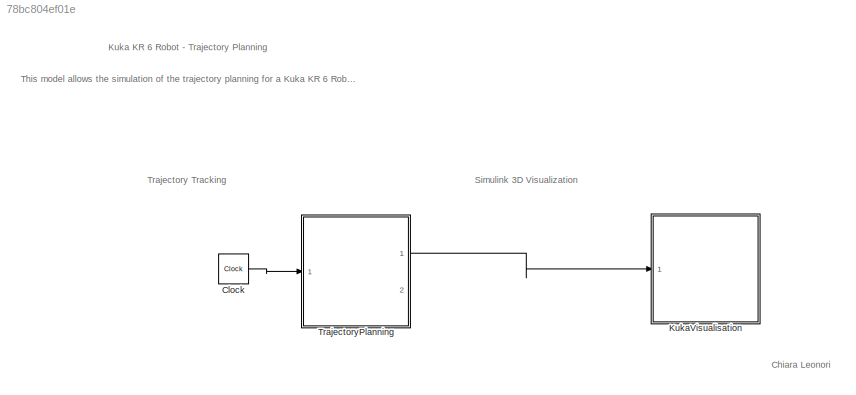
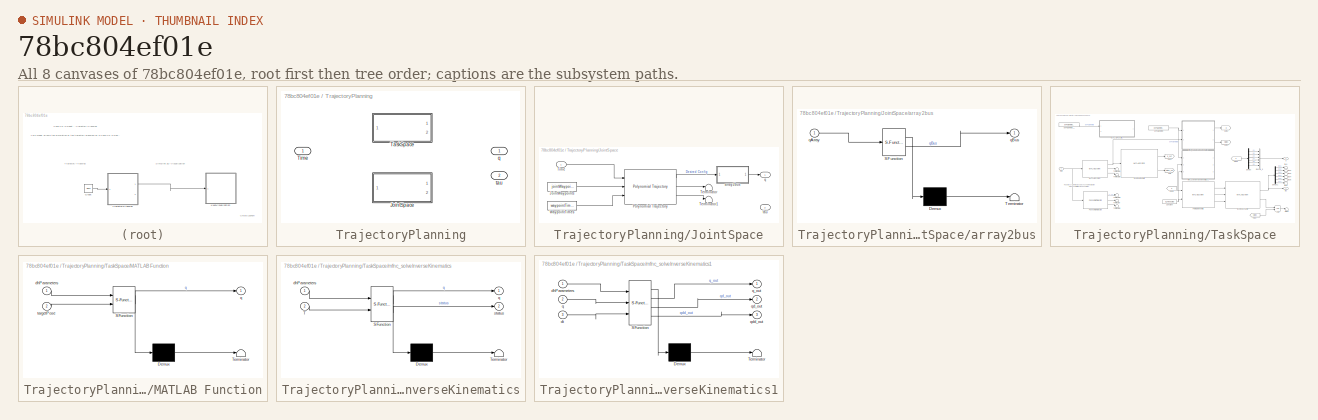
[diagram: thumbnail index - all 8 canvases of the model, root first then tree order]
MODEL slx_78bc804ef01e
KIND model
CONFIG AbsTol = auto
CONFIG EnableMultiTasking = off
CONFIG FixedStep = 0.01
CONFIG InitFcn = if TP_MODE == 1\n    %pass\n    return;\nend\njointWaypoints = zeros(4, size(waypoints, 2));\nfor i=1:size(waypoints, 2)\n    config = FBR.searchConfiguration( ...\n        FBR.solveIK(bodyLengths.La, bodyLengths.Lb, bodyLengths.Lc, waypoints(1, i), waypoints(2, i)) ...\n    );\n    jointWaypoints(:, i) = [config.th1; config.th2; config.th3; config.th4];\nend
CONFIG MaxStep = auto
CONFIG MinStep = auto
CONFIG PreLoadFcn = TP_TASK_SPACE = Simulink.Variant('TP_MODE==1');\nTP_JOINT_SPACE = Simulink.Variant('TP_MODE==2');\n
CONFIG RelTol = 1e-3
CONFIG SampleTimeConstraint = Unconstrained
CONFIG SolverName = VariableStepAuto
CONFIG StartTime = 0.0
CONFIG StopTime = 36
BLOCK [Clock] Clock
BLOCK [SubSystem] KukaVisualisation
  Ports = [1]
  ReferencedSubsystem = KukaVisualisationModel
  RequestExecContextInheritance = off
BLOCK [SubSystem] TrajectoryPlanning
  Ports = [1, 2]
  RequestExecContextInheritance = off
  Variant = on
BLOCK [SubSystem] TrajectoryPlanning/JointSpace
  Ports = [1, 2]
  RequestExecContextInheritance = off
  VariantControl = TP_MODE == 2
BLOCK [Constant] TrajectoryPlanning/JointSpace/JointWaypoints
  Value = jointWaypoints
BLOCK [Reference] TrajectoryPlanning/JointSpace/Polynomial Trajectory  REF=robotcorelib/Polynomial Trajectory
  Ports = [3, 3]
  SourceBlock = robotcorelib/Polynomial Trajectory
  SourceProductBaseCode = NV,RO,RR,UV
  SourceType = robotics.slcore.internal.block.PolyTrajSys
BLOCK [Terminator] TrajectoryPlanning/JointSpace/Terminator
BLOCK [Terminator] TrajectoryPlanning/JointSpace/Terminator1
BLOCK [Inport] TrajectoryPlanning/JointSpace/Time
BLOCK [Constant] TrajectoryPlanning/JointSpace/WaypointTimes
  Value = waypointTimes
BLOCK [SubSystem] TrajectoryPlanning/JointSpace/array2bus
  ErrorFcn = Stateflow.Translate.translate
  PermitHierarchicalResolution = ExplicitOnly
  Ports = [1, 1]
  RequestExecContextInheritance = off
  SFBlockType = MATLAB Function
  TreatAsAtomicUnit = on
BLOCK [Demux] TrajectoryPlanning/JointSpace/array2bus/ Demux 
  Outputs = 1
  Ports = [1, 1]
BLOCK [S-Function] TrajectoryPlanning/JointSpace/array2bus/ SFunction 
  EnableBusSupport = on
  FunctionName = sf_sfun
  PortCounts = [1 2]
  Ports = [1, 2]
  SFcnIsStateOwnerBlock = off
  SFunctionDeploymentMode = off
  Tag = Stateflow S-Function 3
BLOCK [Terminator] TrajectoryPlanning/JointSpace/array2bus/ Terminator 
BLOCK [Inport] TrajectoryPlanning/JointSpace/array2bus/qArray
BLOCK [Outport] TrajectoryPlanning/JointSpace/array2bus/qBus
BLOCK [Outport] TrajectoryPlanning/JointSpace/q
  OutDataTypeStr = Bus: Bus_q
BLOCK [Outport] TrajectoryPlanning/JointSpace/tau
  OutDataTypeStr = double
  Port = 2
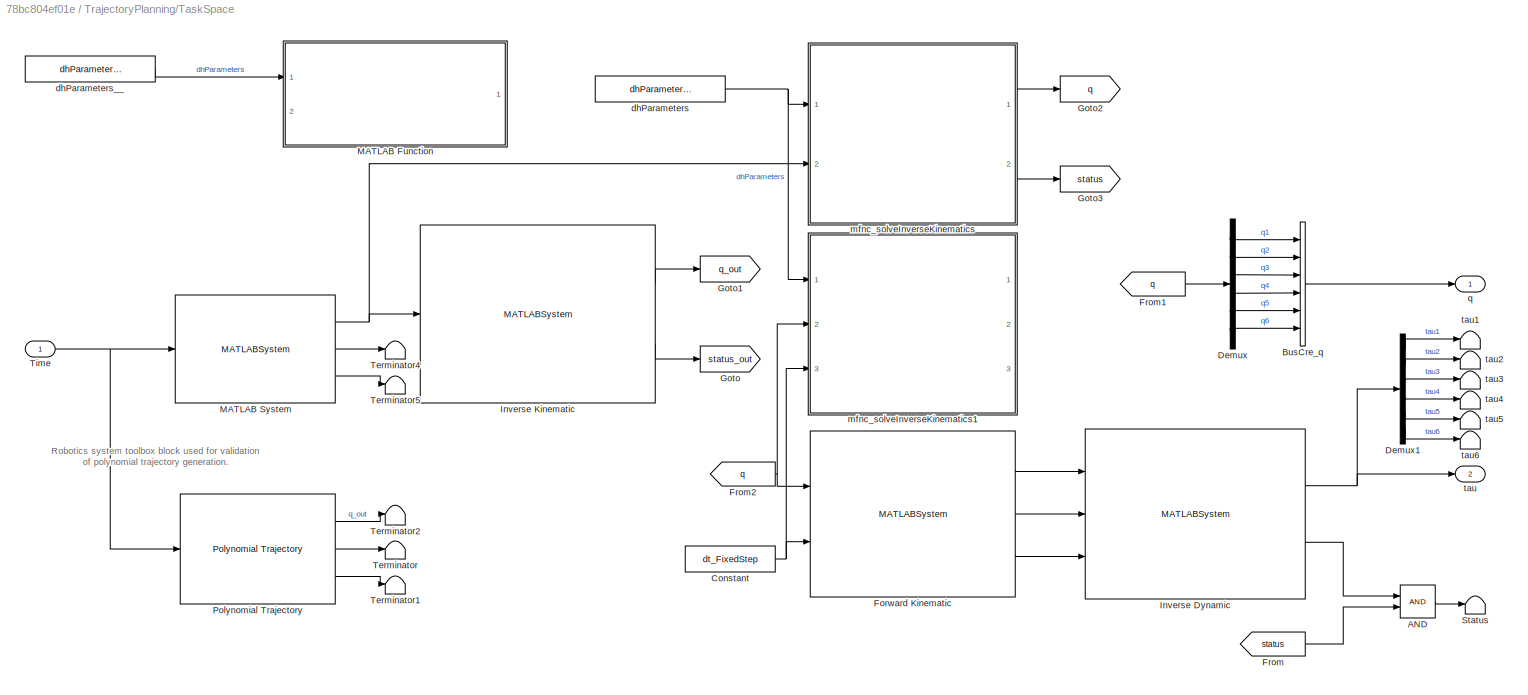
BLOCK [SubSystem] TrajectoryPlanning/TaskSpace
  Ports = [1, 2]
  RequestExecContextInheritance = off
  VariantControl = TP_MODE == 1
BLOCK [Logic] TrajectoryPlanning/TaskSpace/AND
  AllPortsSameDT = off
  OutDataTypeStr = boolean
  Ports = [2, 1]
BLOCK [BusCreator] TrajectoryPlanning/TaskSpace/BusCre_q
  DisplayOption = bar
  InheritFromInputs = on
  Inputs = q1,q2,q3,q4,q5,q6
  OutDataTypeStr = Bus: Bus_q
  Ports = [6, 1]
BLOCK [Constant] TrajectoryPlanning/TaskSpace/Constant
  OutDataTypeStr = double
  Value = dt_FixedStep
BLOCK [Demux] TrajectoryPlanning/TaskSpace/Demux
  Outputs = 6
  Ports = [1, 6]
BLOCK [Demux] TrajectoryPlanning/TaskSpace/Demux1
  Outputs = 6
  Ports = [1, 6]
BLOCK [MATLABSystem] TrajectoryPlanning/TaskSpace/Forward Kinematic
  DHStruct = dhParametersStruct
  Fext = zeros( 6, 1 )
  I = dynamicProps.I
  M = dynamicProps.M
  MaskDisplay = image('srcs\simulink\blockicons\solver-fk-icon.jpg');\nport_label('input',1,'q');\nport_label('input',2,'dt');\nport_label('output',1,'q_out');\nport_label('output',2,'qd_out');\nport_label('output',3,'qdd_out');
  MaskType = core.Kuka6
  Ports = [2, 3]
  SimulateUsing = Interpreted execution
  Solver = Forward Kinematic
  System = core.Kuka6
  Tolerance = 1e-6
BLOCK [From] TrajectoryPlanning/TaskSpace/From
  GotoTag = status
BLOCK [From] TrajectoryPlanning/TaskSpace/From1
  GotoTag = q
BLOCK [From] TrajectoryPlanning/TaskSpace/From2
  GotoTag = q
BLOCK [Goto] TrajectoryPlanning/TaskSpace/Goto
  GotoTag = status_out
BLOCK [Goto] TrajectoryPlanning/TaskSpace/Goto1
  GotoTag = q_out
BLOCK [Goto] TrajectoryPlanning/TaskSpace/Goto2
  GotoTag = q
BLOCK [Goto] TrajectoryPlanning/TaskSpace/Goto3
  GotoTag = status
BLOCK [MATLABSystem] TrajectoryPlanning/TaskSpace/Inverse Dynamic
  DHStruct = dhParametersStruct
  Fext = zeros( 6, 1 )
  I = dynamicAttr.I
  M = dynamicAttr.M
  MaskDisplay = image('srcs\simulink\blockicons\solver-id-icon.jpg');\nport_label('input',1,'q');\nport_label('input',2,'qd');\nport_label('input',3,'qdd');\nport_label('output',1,'tau');\nport_label('output',2,'status');
  MaskType = core.Kuka6
  Ports = [3, 2]
  SimulateUsing = Interpreted execution
  Solver = Inverse Dynamic
  System = core.Kuka6
  Tolerance = 1e-6
BLOCK [MATLABSystem] TrajectoryPlanning/TaskSpace/Inverse Kinematic
  DHStruct = dhParametersStruct
  Fext = zeros( 6, 1 )
  I = zeros( 3, 3, 6 )
  M = zeros( 6, 1 )
  MaskDisplay = image('srcs\simulink\blockicons\solver-ik-icon.jpg');\nport_label('input',1,'targetPose');\nport_label('output',1,'q');\nport_label('output',2,'status');
  MaskType = core.Kuka6
  Ports = [1, 2]
  SimulateUsing = Interpreted execution
  Solver = Inverse Kinematic
  System = core.Kuka6
  Tolerance = 1e-6
BLOCK [SubSystem] TrajectoryPlanning/TaskSpace/MATLAB Function
  Commented = on
  ErrorFcn = Stateflow.Translate.translate
  PermitHierarchicalResolution = ExplicitOnly
  Ports = [2, 1]
  RequestExecContextInheritance = off
  SFBlockType = MATLAB Function
  TreatAsAtomicUnit = on
BLOCK [Demux] TrajectoryPlanning/TaskSpace/MATLAB Function/ Demux 
  Outputs = 1
  Ports = [1, 1]
BLOCK [S-Function] TrajectoryPlanning/TaskSpace/MATLAB Function/ SFunction 
  EnableBusSupport = on
  FunctionName = sf_sfun
  PortCounts = [2 2]
  Ports = [2, 2]
  SFcnIsStateOwnerBlock = off
  SFunctionDeploymentMode = off
  Tag = Stateflow S-Function 2
BLOCK [Terminator] TrajectoryPlanning/TaskSpace/MATLAB Function/ Terminator 
BLOCK [Inport] TrajectoryPlanning/TaskSpace/MATLAB Function/dhParameters
BLOCK [Outport] TrajectoryPlanning/TaskSpace/MATLAB Function/q
BLOCK [Inport] TrajectoryPlanning/TaskSpace/MATLAB Function/targetPose
  Port = 2
BLOCK [MATLABSystem] TrajectoryPlanning/TaskSpace/MATLAB System
  Accelerations = waypointsStruct.accelerations
  MaskDisplay = image('srcs\simulink\blockicons\polynomial-icon-big.jpg');\nport_label('input',1,'t');\nport_label('output',1,'q_out');\nport_label('output',2,'qd_out');\nport_label('output',3,'qdd_out');
  MaskType = core.TrajectoryGenerator
  Method = Quintic Polynomial
  Ports = [1, 3]
  SimulateUsing = Interpreted execution
  System = core.TrajectoryGenerator
  Timepoints = waypointsStruct.times
  Velocities = waypointsStruct.velocities
  Waypoints = waypointsStruct.waypoints
BLOCK [Reference] TrajectoryPlanning/TaskSpace/Polynomial Trajectory  REF=robotcorelib/Polynomial Trajectory
  Ports = [1, 3]
  SourceBlock = robotcorelib/Polynomial Trajectory
  SourceProductBaseCode = NV,RO,RR,UV
  SourceType = robotics.slcore.internal.block.PolyTrajSys
BLOCK [Terminator] TrajectoryPlanning/TaskSpace/Status
BLOCK [Terminator] TrajectoryPlanning/TaskSpace/Terminator
BLOCK [Terminator] TrajectoryPlanning/TaskSpace/Terminator1
BLOCK [Terminator] TrajectoryPlanning/TaskSpace/Terminator2
BLOCK [Terminator] TrajectoryPlanning/TaskSpace/Terminator4
BLOCK [Terminator] TrajectoryPlanning/TaskSpace/Terminator5
BLOCK [Inport] TrajectoryPlanning/TaskSpace/Time
BLOCK [Constant] TrajectoryPlanning/TaskSpace/dhParameters
  OutDataTypeStr = Bus: Bus_dhParameter
  Value = dhParametersStruct
BLOCK [Constant] TrajectoryPlanning/TaskSpace/dhParameters__
  Commented = on
  OutDataTypeStr = Bus: Bus_dhParameter
  Value = dhParametersStruct
BLOCK [SubSystem] TrajectoryPlanning/TaskSpace/mfnc_solveInverseKinematics
  ErrorFcn = Stateflow.Translate.translate
  PermitHierarchicalResolution = ExplicitOnly
  Ports = [2, 2]
  RequestExecContextInheritance = off
  SFBlockType = MATLAB Function
  TreatAsAtomicUnit = on
BLOCK [Demux] TrajectoryPlanning/TaskSpace/mfnc_solveInverseKinematics/ Demux 
  Outputs = 1
  Ports = [1, 1]
BLOCK [S-Function] TrajectoryPlanning/TaskSpace/mfnc_solveInverseKinematics/ SFunction 
  EnableBusSupport = off
  FunctionName = sf_sfun
  PortCounts = [2 3]
  Ports = [2, 3]
  SFcnIsStateOwnerBlock = off
  SFunctionDeploymentMode = off
  Tag = Stateflow S-Function 1
BLOCK [Terminator] TrajectoryPlanning/TaskSpace/mfnc_solveInverseKinematics/ Terminator 
BLOCK [Inport] TrajectoryPlanning/TaskSpace/mfnc_solveInverseKinematics/T
  Port = 2
BLOCK [Inport] TrajectoryPlanning/TaskSpace/mfnc_solveInverseKinematics/dhParameters
BLOCK [Outport] TrajectoryPlanning/TaskSpace/mfnc_solveInverseKinematics/q
BLOCK [Outport] TrajectoryPlanning/TaskSpace/mfnc_solveInverseKinematics/status
  Port = 2
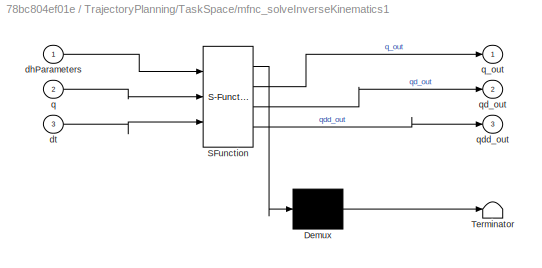
BLOCK [SubSystem] TrajectoryPlanning/TaskSpace/mfnc_solveInverseKinematics1
  ErrorFcn = Stateflow.Translate.translate
  PermitHierarchicalResolution = ExplicitOnly
  Ports = [3, 3]
  RequestExecContextInheritance = off
  SFBlockType = MATLAB Function
  TreatAsAtomicUnit = on
BLOCK [Demux] TrajectoryPlanning/TaskSpace/mfnc_solveInverseKinematics1/ Demux 
  Outputs = 1
  Ports = [1, 1]
BLOCK [S-Function] TrajectoryPlanning/TaskSpace/mfnc_solveInverseKinematics1/ SFunction 
  EnableBusSupport = off
  FunctionName = sf_sfun
  PortCounts = [3 4]
  Ports = [3, 4]
  SFcnIsStateOwnerBlock = off
  SFunctionDeploymentMode = off
  Tag = Stateflow S-Function 4
BLOCK [Terminator] TrajectoryPlanning/TaskSpace/mfnc_solveInverseKinematics1/ Terminator 
BLOCK [Inport] TrajectoryPlanning/TaskSpace/mfnc_solveInverseKinematics1/dhParameters
BLOCK [Inport] TrajectoryPlanning/TaskSpace/mfnc_solveInverseKinematics1/dt
  Port = 3
BLOCK [Inport] TrajectoryPlanning/TaskSpace/mfnc_solveInverseKinematics1/q
  Port = 2
BLOCK [Outport] TrajectoryPlanning/TaskSpace/mfnc_solveInverseKinematics1/q_out
BLOCK [Outport] TrajectoryPlanning/TaskSpace/mfnc_solveInverseKinematics1/qd_out
  Port = 2
BLOCK [Outport] TrajectoryPlanning/TaskSpace/mfnc_solveInverseKinematics1/qdd_out
  Port = 3
BLOCK [Outport] TrajectoryPlanning/TaskSpace/q
  OutDataTypeStr = Bus: Bus_q
BLOCK [Outport] TrajectoryPlanning/TaskSpace/tau
  OutDataTypeStr = double
  Port = 2
BLOCK [Terminator] TrajectoryPlanning/TaskSpace/tau1
BLOCK [Terminator] TrajectoryPlanning/TaskSpace/tau2
BLOCK [Terminator] TrajectoryPlanning/TaskSpace/tau3
BLOCK [Terminator] TrajectoryPlanning/TaskSpace/tau4
BLOCK [Terminator] TrajectoryPlanning/TaskSpace/tau5
BLOCK [Terminator] TrajectoryPlanning/TaskSpace/tau6
BLOCK [Inport] TrajectoryPlanning/Time
BLOCK [Outport] TrajectoryPlanning/q
  OutDataTypeStr = Bus: Bus_q
BLOCK [Outport] TrajectoryPlanning/tau
  OutDataTypeStr = double
  Port = 2
ANNOTATION (root): Chiara Leonori
ANNOTATION (root): This model allows the simulation of the trajectory planning for a Kuka KR 6 Robot. Either the task space or the joint space can be used, through two Variant Subsystems ("TP_MODE"=1 -> task space; "TP_MODE"=2 -> joint space).The model uses the polynomial trajectory block to create continuous trajectories in the configuration space.The KukaVisualization Model reference simulates and displays the beh...<+74ch>
ANNOTATION (root): Kuka KR 6 Robot - Trajectory Planning
ANNOTATION (root): Simulink 3D Visualization
ANNOTATION (root): Trajectory Tracking
ANNOTATION TrajectoryPlanning/TaskSpace: Robotics system toolbox block used for validation of polynomial trajectory generation.
LINE Clock:1 -> TrajectoryPlanning:1
LINE TrajectoryPlanning/JointSpace/JointWaypoints:1 -> TrajectoryPlanning/JointSpace/Polynomial Trajectory:2
LINE TrajectoryPlanning/JointSpace/Polynomial Trajectory:1 -> TrajectoryPlanning/JointSpace/array2bus:1
LINE TrajectoryPlanning/JointSpace/Polynomial Trajectory:2 -> TrajectoryPlanning/JointSpace/Terminator:1
LINE TrajectoryPlanning/JointSpace/Polynomial Trajectory:3 -> TrajectoryPlanning/JointSpace/Terminator1:1
LINE TrajectoryPlanning/JointSpace/Time:1 -> TrajectoryPlanning/JointSpace/Polynomial Trajectory:1
LINE TrajectoryPlanning/JointSpace/WaypointTimes:1 -> TrajectoryPlanning/JointSpace/Polynomial Trajectory:3
LINE TrajectoryPlanning/JointSpace/array2bus:1 -> TrajectoryPlanning/JointSpace/q:1
LINE TrajectoryPlanning/TaskSpace/AND:1 -> TrajectoryPlanning/TaskSpace/Status:1
LINE TrajectoryPlanning/TaskSpace/BusCre_q:1 -> TrajectoryPlanning/TaskSpace/q:1
NET TrajectoryPlanning/TaskSpace/Constant:1 -> TrajectoryPlanning/TaskSpace/Forward Kinematic:2, TrajectoryPlanning/TaskSpace/mfnc_solveInverseKinematics1:3
LINE TrajectoryPlanning/TaskSpace/Demux1:1 -> TrajectoryPlanning/TaskSpace/tau1:1
LINE TrajectoryPlanning/TaskSpace/Demux1:2 -> TrajectoryPlanning/TaskSpace/tau2:1
LINE TrajectoryPlanning/TaskSpace/Demux1:3 -> TrajectoryPlanning/TaskSpace/tau3:1
LINE TrajectoryPlanning/TaskSpace/Demux1:4 -> TrajectoryPlanning/TaskSpace/tau4:1
LINE TrajectoryPlanning/TaskSpace/Demux1:5 -> TrajectoryPlanning/TaskSpace/tau5:1
LINE TrajectoryPlanning/TaskSpace/Demux1:6 -> TrajectoryPlanning/TaskSpace/tau6:1
LINE TrajectoryPlanning/TaskSpace/Demux:1 -> TrajectoryPlanning/TaskSpace/BusCre_q:1
LINE TrajectoryPlanning/TaskSpace/Demux:2 -> TrajectoryPlanning/TaskSpace/BusCre_q:2
LINE TrajectoryPlanning/TaskSpace/Demux:3 -> TrajectoryPlanning/TaskSpace/BusCre_q:3
LINE TrajectoryPlanning/TaskSpace/Demux:4 -> TrajectoryPlanning/TaskSpace/BusCre_q:4
LINE TrajectoryPlanning/TaskSpace/Demux:5 -> TrajectoryPlanning/TaskSpace/BusCre_q:5
LINE TrajectoryPlanning/TaskSpace/Demux:6 -> TrajectoryPlanning/TaskSpace/BusCre_q:6
LINE TrajectoryPlanning/TaskSpace/Forward Kinematic:1 -> TrajectoryPlanning/TaskSpace/Inverse Dynamic:1
LINE TrajectoryPlanning/TaskSpace/Forward Kinematic:2 -> TrajectoryPlanning/TaskSpace/Inverse Dynamic:2
LINE TrajectoryPlanning/TaskSpace/Forward Kinematic:3 -> TrajectoryPlanning/TaskSpace/Inverse Dynamic:3
LINE TrajectoryPlanning/TaskSpace/From1:1 -> TrajectoryPlanning/TaskSpace/Demux:1
NET TrajectoryPlanning/TaskSpace/From2:1 -> TrajectoryPlanning/TaskSpace/Forward Kinematic:1, TrajectoryPlanning/TaskSpace/mfnc_solveInverseKinematics1:2
LINE TrajectoryPlanning/TaskSpace/From:1 -> TrajectoryPlanning/TaskSpace/AND:2
NET TrajectoryPlanning/TaskSpace/Inverse Dynamic:1 -> TrajectoryPlanning/TaskSpace/Demux1:1, TrajectoryPlanning/TaskSpace/tau:1
LINE TrajectoryPlanning/TaskSpace/Inverse Dynamic:2 -> TrajectoryPlanning/TaskSpace/AND:1
LINE TrajectoryPlanning/TaskSpace/Inverse Kinematic:1 -> TrajectoryPlanning/TaskSpace/Goto1:1
LINE TrajectoryPlanning/TaskSpace/Inverse Kinematic:2 -> TrajectoryPlanning/TaskSpace/Goto:1
NET TrajectoryPlanning/TaskSpace/MATLAB System:1 -> TrajectoryPlanning/TaskSpace/Inverse Kinematic:1, TrajectoryPlanning/TaskSpace/mfnc_solveInverseKinematics:2
LINE TrajectoryPlanning/TaskSpace/MATLAB System:2 -> TrajectoryPlanning/TaskSpace/Terminator4:1
LINE TrajectoryPlanning/TaskSpace/MATLAB System:3 -> TrajectoryPlanning/TaskSpace/Terminator5:1
LINE TrajectoryPlanning/TaskSpace/Polynomial Trajectory:1 -> TrajectoryPlanning/TaskSpace/Terminator2:1
LINE TrajectoryPlanning/TaskSpace/Polynomial Trajectory:2 -> TrajectoryPlanning/TaskSpace/Terminator:1
LINE TrajectoryPlanning/TaskSpace/Polynomial Trajectory:3 -> TrajectoryPlanning/TaskSpace/Terminator1:1
NET TrajectoryPlanning/TaskSpace/Time:1 -> TrajectoryPlanning/TaskSpace/MATLAB System:1, TrajectoryPlanning/TaskSpace/Polynomial Trajectory:1
NET TrajectoryPlanning/TaskSpace/dhParameters:1 -> TrajectoryPlanning/TaskSpace/mfnc_solveInverseKinematics1:1, TrajectoryPlanning/TaskSpace/mfnc_solveInverseKinematics:1
LINE TrajectoryPlanning/TaskSpace/dhParameters__:1 -> TrajectoryPlanning/TaskSpace/MATLAB Function:1
LINE TrajectoryPlanning/TaskSpace/mfnc_solveInverseKinematics:1 -> TrajectoryPlanning/TaskSpace/Goto2:1
LINE TrajectoryPlanning/TaskSpace/mfnc_solveInverseKinematics:2 -> TrajectoryPlanning/TaskSpace/Goto3:1
LINE TrajectoryPlanning:1 -> KukaVisualisation:1
note: NET lines group one-source signal fan-out (src -> all destinations, sorted); 1:1 wires keep LINE
CHART TrajectoryPlanning/TaskSpace/mfnc_solveInverseKinematics states=1 transitions=1
  STATE_LABEL 'eML_blk_kernel()'
  STATE_LABEL "SCRIPT:\nfunction [q, status] = solveInverseKinematics(dhParameters, T)\n% initialize output\nq = zeros(6, 1); status = cast(0, 'int8');\n\ndim = size(T);\nif (dim(1) == 3 && dim(2) == 1) || ...\n        (dim(1) == 1 && dim(2) == 3)\n    % define homogeneous transform T from pose\n    TT = [1, 0, 0, T(1, 1);\n        0, -1, 0, T(2, 1);\n        0, 0, -1, T(3, 1);\n        0, 0, 0, 1];\nelse \n    TT = T;\nend\n[q...<+64ch>"
CHART TrajectoryPlanning/TaskSpace/MATLAB Function states=1 transitions=1
  STATE_LABEL 'eML_blk_kernel()'
  STATE_LABEL 'SCRIPT:\nfunction q = IKSolver(dhParameters, targetPose)\nT = [1, 0, 0, targetPose(1, 1);\n    0, -1, 0, targetPose(2, 1);\n    0, 0, -1, targetPose(3, 1);\n    0, 0, 0, 1];\nsixAxesRobot = SixAxesRobot(dhParameters);\nsixAxesRobot.disableVerbose();\nsolution = sixAxesRobot.solveIK(T);\n\nq.q1 = solution(1);\nq.q2 = solution(2);\nq.q3 = solution(3);\nq.q4 = solution(4);\nq.q5 = solution(5);\nq.q6 = solution(6);'
CHART TrajectoryPlanning/JointSpace/array2bus states=1 transitions=1
  STATE_LABEL 'eML_blk_kernel()'
  STATE_LABEL 'SCRIPT:\nfunction qBus = adapter(qArray)\n    qBus.th1 = qArray(1);\n    qBus.th2 = qArray(2);\n    qBus.th3 = qArray(3);\n    qBus.th4 = qArray(4);\n'
CHART TrajectoryPlanning/TaskSpace/mfnc_solveInverseKinematics1 states=1 transitions=1
  STATE_LABEL 'eML_blk_kernel()'
  STATE_LABEL "SCRIPT:\nfunction [q_out, qd_out, qdd_out] = solveForwardKinematics(dhParameters, q, dt)\ncoder.internal.errorIf(nargin > 2 & nargout < 3, 'solver:solveForwardKinematics:NotEnoughInputArgument');\nn = 6;\ny = zeros(3, n);\nT = eye(4, 4); % initialize T for first computation\nfor i=1:n\n    T = T*solver.computeT(dhParameters(i, :), q(i));\n    y(:, i) = T(1:3, 4);\nend\nif nargout > 1 && nargin > 2 % if dt i...<+204ch>"
CHART  states=0 transitions=0
CHART  states=0 transitions=0
CHART  states=0 transitions=0
CHART  states=0 transitions=0
